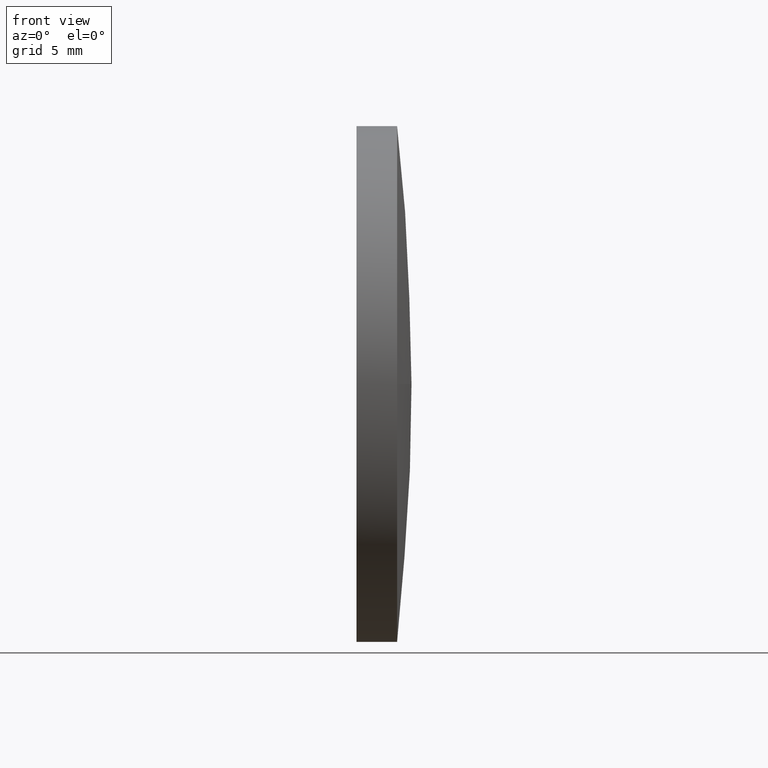
[diagram: clean part render]
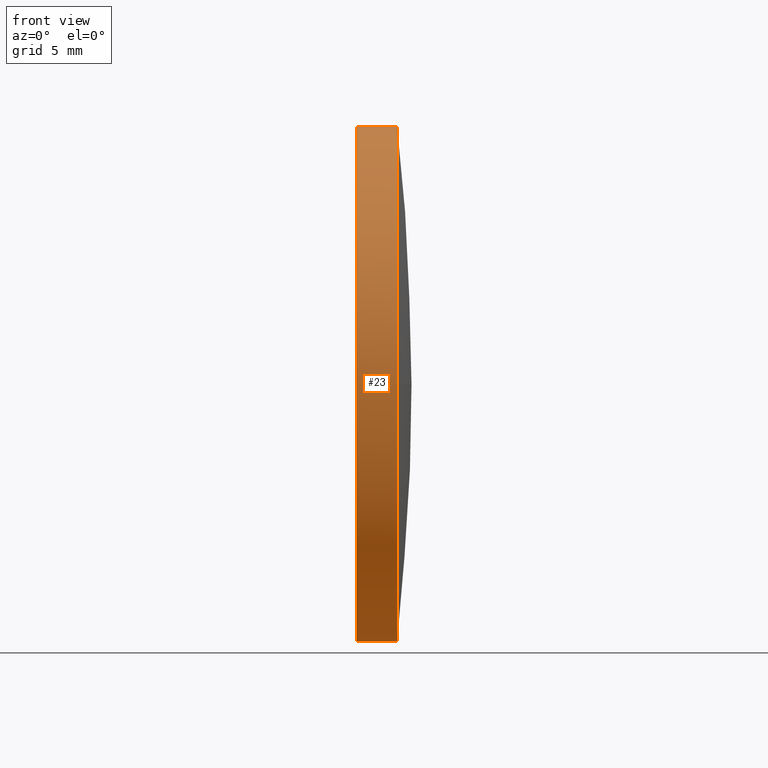
[diagram: same view with one face highlighted and labeled with its STEP entity id]
A machine part, front view. The second image highlights one B-rep face of the part: STEP entity #23.
In plain terms, the highlighted cylindrical surface (partial cylindrical patch) has radius 12.7 mm, axis along (-1, -0, -0).
Its self-contained STEP definition (entity closure, byte-faithful):
#6 = CARTESIAN_POINT ( 'NONE',  ( 451.1457907511151000, 24.66332668571183700, 12.70000000000000600 ) ) ;
#8 = CARTESIAN_POINT ( 'NONE',  ( 443.4411172036602700, 24.66332668571183700, 0.0000000000000000000 ) ) ;
#13 = DIRECTION ( 'NONE',  ( -1.000000000000000000, -0.0000000000000000000, -0.0000000000000000000 ) ) ;
#21 = EDGE_LOOP ( 'NONE', ( #124, #163, #58, #106, #48 ) ) ;
#23 = ADVANCED_FACE ( 'NONE', ( #129 ), #177, .T. ) ;
#24 = DIRECTION ( 'NONE',  ( 0.0000000000000000000, 0.0000000000000000000, 1.000000000000000000 ) ) ;
#26 = AXIS2_PLACEMENT_3D ( 'NONE', #8, #151, #180 ) ;
#27 = CARTESIAN_POINT ( 'NONE',  ( 443.4411172036602700, 24.66332668571183700, 12.70000000000000600 ) ) ;
#31 = EDGE_CURVE ( 'NONE', #55, #54, #72, .T. ) ;
#40 = EDGE_CURVE ( 'NONE', #114, #64, #66, .T. ) ;
#48 = ORIENTED_EDGE ( 'NONE', *, *, #175, .F. ) ;
#54 = VERTEX_POINT ( 'NONE', #6 ) ;
#55 = VERTEX_POINT ( 'NONE', #69 ) ;
#56 = CARTESIAN_POINT ( 'NONE',  ( 451.1457907511151000, 24.66332668571183700, 0.0000000000000000000 ) ) ;
#58 = ORIENTED_EDGE ( 'NONE', *, *, #31, .T. ) ;
#59 = CARTESIAN_POINT ( 'NONE',  ( 449.1457907511151000, 24.66332668571183700, 12.70000000000000600 ) ) ;
#64 = VERTEX_POINT ( 'NONE', #167 ) ;
#65 = CIRCLE ( 'NONE', #76, 12.70000000000000600 ) ;
#66 = LINE ( 'NONE', #171, #176 ) ;
#69 = CARTESIAN_POINT ( 'NONE',  ( 451.1457907511151000, 11.96332668571173000, -1.555301434917133100E-015 ) ) ;
#72 = CIRCLE ( 'NONE', #166, 12.70000000000000600 ) ;
#74 = CARTESIAN_POINT ( 'NONE',  ( 451.1457907511151000, 24.66332668571183700, 0.0000000000000000000 ) ) ;
#76 = AXIS2_PLACEMENT_3D ( 'NONE', #74, #135, #95 ) ;
#80 = EDGE_CURVE ( 'NONE', #114, #55, #65, .T. ) ;
#84 = DIRECTION ( 'NONE',  ( -1.000000000000000000, -0.0000000000000000000, -0.0000000000000000000 ) ) ;
#93 = DIRECTION ( 'NONE',  ( -1.000000000000000000, -0.0000000000000000000, -0.0000000000000000000 ) ) ;
#95 = DIRECTION ( 'NONE',  ( 0.0000000000000000000, 0.0000000000000000000, 1.000000000000000000 ) ) ;
#106 = ORIENTED_EDGE ( 'NONE', *, *, #156, .T. ) ;
#108 = AXIS2_PLACEMENT_3D ( 'NONE', #170, #13, #141 ) ;
#114 = VERTEX_POINT ( 'NONE', #117 ) ;
#117 = CARTESIAN_POINT ( 'NONE',  ( 451.1457907511151000, 24.66332668571183700, -12.70000000000000600 ) ) ;
#124 = ORIENTED_EDGE ( 'NONE', *, *, #40, .F. ) ;
#126 = LINE ( 'NONE', #27, #137 ) ;
#129 = FACE_OUTER_BOUND ( 'NONE', #21, .T. ) ;
#135 = DIRECTION ( 'NONE',  ( -1.000000000000000000, -0.0000000000000000000, -0.0000000000000000000 ) ) ;
#137 = VECTOR ( 'NONE', #157, 1000.000000000000000 ) ;
#141 = DIRECTION ( 'NONE',  ( 0.0000000000000000000, 0.0000000000000000000, 1.000000000000000000 ) ) ;
#143 = CIRCLE ( 'NONE', #108, 12.70000000000000600 ) ;
#151 = DIRECTION ( 'NONE',  ( -1.000000000000000000, -0.0000000000000000000, -0.0000000000000000000 ) ) ;
#156 = EDGE_CURVE ( 'NONE', #54, #169, #126, .T. ) ;
#157 = DIRECTION ( 'NONE',  ( -1.000000000000000000, -0.0000000000000000000, -0.0000000000000000000 ) ) ;
#163 = ORIENTED_EDGE ( 'NONE', *, *, #80, .T. ) ;
#166 = AXIS2_PLACEMENT_3D ( 'NONE', #56, #93, #24 ) ;
#167 = CARTESIAN_POINT ( 'NONE',  ( 449.1457907511151000, 24.66332668571183700, -12.70000000000000600 ) ) ;
#169 = VERTEX_POINT ( 'NONE', #59 ) ;
#170 = CARTESIAN_POINT ( 'NONE',  ( 449.1457907511151000, 24.66332668571183700, 0.0000000000000000000 ) ) ;
#171 = CARTESIAN_POINT ( 'NONE',  ( 443.4411172036602700, 24.66332668571183700, -12.70000000000000600 ) ) ;
#175 = EDGE_CURVE ( 'NONE', #64, #169, #143, .T. ) ;
#176 = VECTOR ( 'NONE', #84, 1000.000000000000000 ) ;
#177 = CYLINDRICAL_SURFACE ( 'NONE', #26, 12.70000000000000600 ) ;
#180 = DIRECTION ( 'NONE',  ( 0.0000000000000000000, 0.0000000000000000000, 1.000000000000000000 ) ) ;